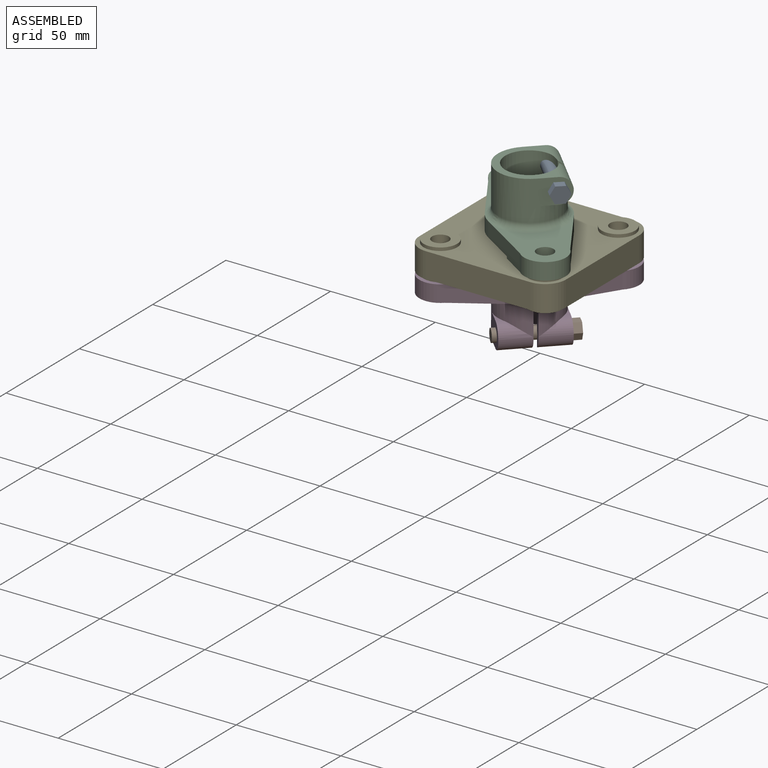
[diagram: assembled view]
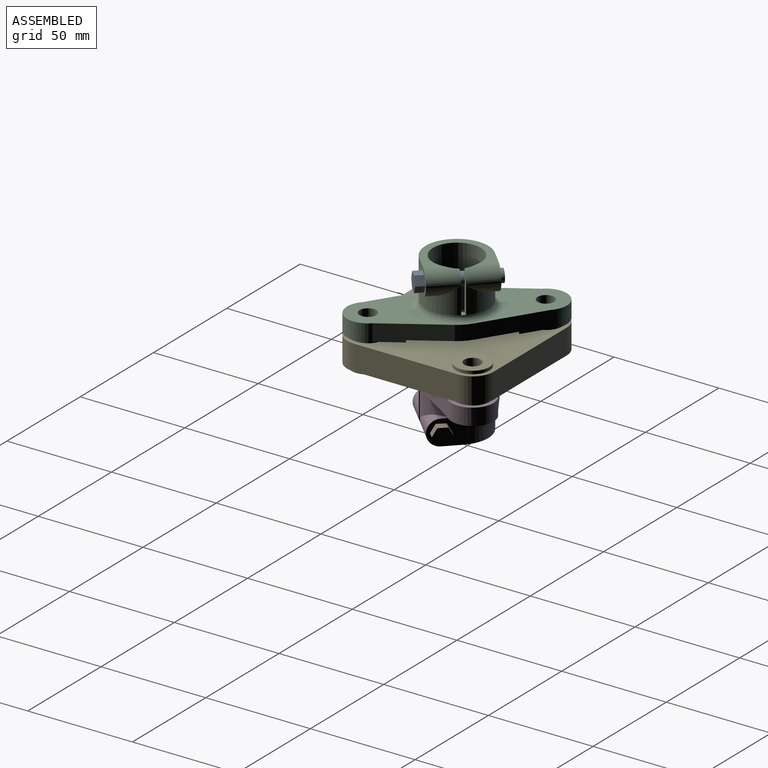
[diagram: assembled view, second angle]
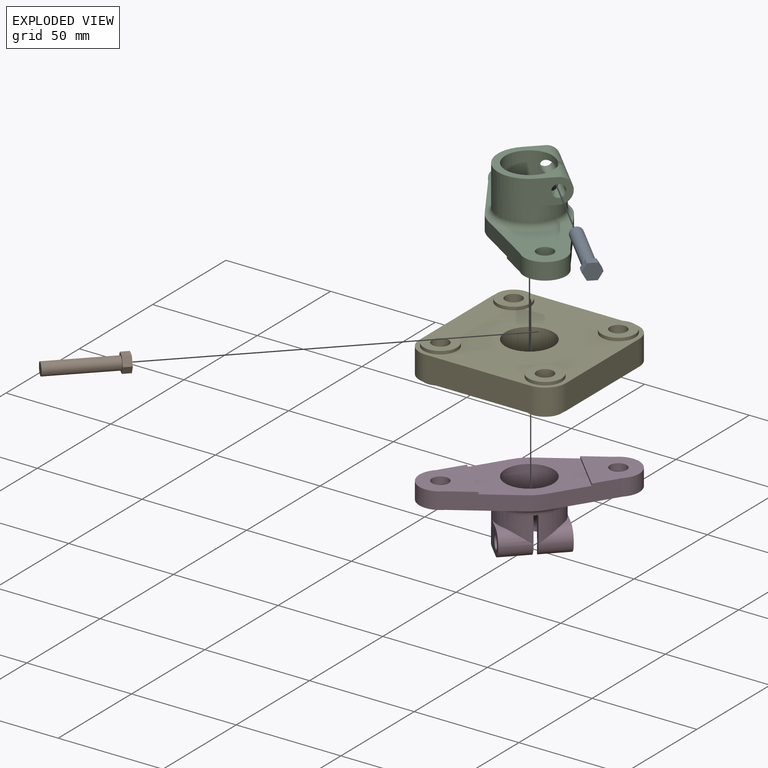
[diagram: exploded view]
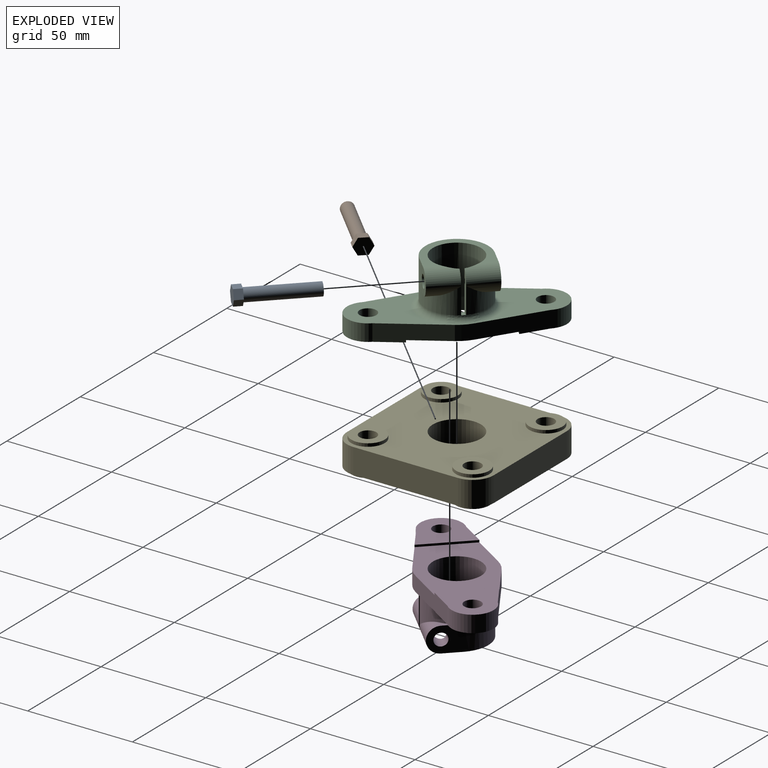
[diagram: exploded view, second angle]
ASSEMBLY  parts=5 mates=4
PART A: 10 faces, bbox 30.7x30.7x7.7 mm
  f0: cylinder r=3mm len=26.87mm, axis (0.71,-0.71,0), area 603.2mm2, adj f1,f9
  f1: plane 6x4.24mm, normal (-0.71,0.71,0), area 28.3mm2, adj f0
  f2: plane 7.68x6.22mm, normal (0.71,-0.71,0), area 50.3mm2, adj f3,f4,f5,f6,f7,f8
  f3: plane 5.94x5.94mm, normal (-0.01,-0.01,-1), area 17.6mm2, adj f2,f4,f8,f9
  f4: plane 4.42x4.42mm, normal (0.61,0.61,-0.51), area 17.6mm2, adj f2,f3,f5,f9
  f5: plane 4.35x4.35mm, normal (0.62,0.62,0.49), area 17.6mm2, adj f2,f4,f6,f9
  f6: plane 5.94x5.94mm, normal (0.01,0.01,1), area 17.6mm2, adj f2,f5,f7,f9
  f7: plane 4.42x4.42mm, normal (-0.61,-0.61,0.51), area 17.6mm2, adj f2,f6,f8,f9
  f8: plane 4.35x4.35mm, normal (-0.62,-0.62,-0.49), area 17.6mm2, adj f2,f3,f7,f9
  f9: plane 7.68x6.22mm, normal (-0.71,0.71,0), area 22mm2, adj f0,f3,f4,f5,f6,f7,f8
PART B: same geometry as A
PART C: 41 faces, bbox 70x70x30 mm
  f0: cylinder r=6mm len=14.14mm, axis (0.71,-0.71,0), area 200.1mm2, adj f3,f4,f6,f24,f35,f37
  f1: cylinder r=6mm len=14.14mm, axis (0.71,-0.71,0), area 200.1mm2, adj f2,f5,f6,f24,f33,f38
  f2: cylinder r=11.5mm len=29mm, axis (0,0,-1), area 1927mm2, adj f1,f3,f23,f24,f33,f35,f36,f39
  f3: cylinder r=11.5mm len=6.09mm, axis (0,0,-1), area 22.7mm2, adj f0,f2,f35,f39
  f4: plane 12x10.61mm, normal (-0.71,0.71,0), area 136.3mm2, adj f0,f6,f24,f37,f39
  f5: plane 12x10.61mm, normal (0.71,-0.71,0), area 136.3mm2, adj f1,f6,f24,f38,f40
  f6: cylinder r=15mm len=30mm, axis (0,0,-1), area 1264.3mm2, adj f0,f1,f4,f5,f24,f25,f26,f27
  f7: plane 40.81x40.81mm, normal (0,0,1), area 591.2mm2, adj f8,f14,f15,f18,f30
  f8: plane 27.34x17.33mm, normal (0.54,0.84,0), area 239.3mm2, adj f7,f13,f14,f20,f22,f23,f28
  f9: plane 27.34x17.33mm, normal (-0.54,-0.84,0), area 239.3mm2, adj f10,f11,f16,f19,f21,f23,f29
  f10: plane 28.2x28.2mm, normal (0,0,-1), area 401mm2, adj f9,f11,f12,f17,f21
  f11: cylinder r=10mm len=17.07mm, axis (0,0,-1), area 251.3mm2, adj f9,f10,f12,f19
  f12: plane 27.33x17.32mm, normal (0.84,0.54,0), area 239.3mm2, adj f10,f11,f13,f19,f21,f23,f25
  f13: cylinder r=17.5mm len=7mm, axis (0,0,-1), area 54.1mm2, adj f8,f12,f23,f26
  f14: cylinder r=10mm len=17.07mm, axis (0,0,-1), area 251.3mm2, adj f7,f8,f15,f20
  f15: plane 27.33x17.32mm, normal (-0.84,-0.54,0), area 239.3mm2, adj f7,f14,f16,f20,f22,f23,f32
  f16: cylinder r=17.5mm len=7mm, axis (0,0,-1), area 54.1mm2, adj f9,f15,f23,f31
  f17: cylinder r=4mm len=8mm, axis (0,0,-1), area 201.1mm2, adj f10,f19
  f18: cylinder r=4mm len=8mm, axis (0,0,-1), area 201.1mm2, adj f7,f20
  f19: plane 40.81x40.81mm, normal (0,0,1), area 591.2mm2, adj f9,f11,f12,f17,f27
  f20: plane 28.2x28.2mm, normal (0,0,-1), area 401mm2, adj f8,f14,f15,f18,f22
  f21: plane 18.22x18.22mm, normal (-0.71,0.71,0), area 25.8mm2, adj f9,f10,f12,f23
  f22: plane 18.22x18.22mm, normal (0.71,-0.71,0), area 25.8mm2, adj f8,f15,f20,f23
  f23: plane 50.04x50.04mm, normal (0,0,-1), area 969.2mm2, adj f2,f8,f9,f12,f13,f15,f16,f21
  f24: plane 31.97x31.97mm, normal (0,0,1), area 232.4mm2, adj f0,f1,f2,f4,f5,f6
  f25: bspline ~5.85x5.19mm, area 16.5mm2, adj f6,f12,f26,f27
  f26: torus R=18mm, axis (0,0,-1), area 29.5mm2, adj f6,f13,f25,f28,f34
  f27: torus R=18mm, axis (0,0,1), area 168.9mm2, adj f6,f19,f25,f29
  f28: bspline ~6.75x5.71mm, area 16.5mm2, adj f6,f8,f26,f30
  f29: bspline ~6.75x5.71mm, area 16.5mm2, adj f6,f9,f27,f31
  f30: torus R=18mm, axis (0,0,1), area 168.9mm2, adj f6,f7,f28,f32
  f31: torus R=18mm, axis (0,0,-1), area 29.5mm2, adj f6,f16,f29,f32
  f32: bspline ~5.85x5.19mm, area 16.5mm2, adj f6,f15,f30,f31
  f33: plane 18.87x2.51mm, normal (-0.71,0.71,0), area 59.7mm2, adj f1,f2,f6,f34,f36,f40
  f34: cylinder r=15mm len=1.41mm, axis (0,0,1), area 0.7mm2, adj f26,f33,f35,f36
  f35: plane 18.87x2.51mm, normal (0.71,-0.71,0), area 59.7mm2, adj f0,f2,f3,f6,f34,f36,f39
  f36: plane 3.9x3.9mm, normal (0,0,1), area 7mm2, adj f2,f33,f34,f35
  f37: plane 8.49x6.36mm, normal (0,0,-1), area 8.6mm2, adj f0,f4,f6
  f38: plane 8.49x6.36mm, normal (0,0,-1), area 8.6mm2, adj f1,f5,f6
  f39: cylinder r=3mm len=14.14mm, axis (0.71,-0.71,0), area 171mm2, adj f2,f3,f4,f35
  f40: cylinder r=3mm len=14.14mm, axis (0.71,-0.71,0), area 167.4mm2, adj f2,f5,f33
PART D: same geometry as C
PART E: 31 faces, bbox 70x70x15 mm
  f0: plane 50x12mm, normal (1,0,0), area 600mm2, adj f1,f12,f13,f14
  f1: cylinder r=10mm len=12mm, axis (0,0,-1), area 188.5mm2, adj f0,f2,f13,f14
  f2: plane 50x12mm, normal (0,1,0), area 600mm2, adj f1,f3,f13,f14
  f3: cylinder r=10mm len=12mm, axis (0,0,-1), area 188.5mm2, adj f2,f4,f13,f14
  f4: plane 50x12mm, normal (-1,0,0), area 600mm2, adj f3,f5,f13,f14
  f5: cylinder r=10mm len=12mm, axis (0,0,-1), area 188.5mm2, adj f4,f6,f13,f14
  f6: plane 50x12mm, normal (0,-1,0), area 600mm2, adj f5,f12,f13,f14
  f7: cylinder r=4mm len=15mm, axis (0,0,-1), area 377mm2, adj f18,f26
  f8: cylinder r=4mm len=15mm, axis (0,0,-1), area 377mm2, adj f20,f28
  f9: cylinder r=4mm len=15mm, axis (0,0,-1), area 377mm2, adj f16,f24
  f10: cylinder r=4mm len=15mm, axis (0,0,-1), area 377mm2, adj f22,f30
  f11: cylinder r=11.5mm len=23mm, axis (0,0,-1), area 867.1mm2, adj f13,f14
  f12: cylinder r=10mm len=12mm, axis (0,0,-1), area 188.5mm2, adj f0,f6,f13,f14
  f13: plane 70x70mm, normal (0,0,1), area 3594.4mm2, adj f0,f1,f2,f3,f4,f5,f6,f11
  f14: plane 70x70mm, normal (0,0,-1), area 3594.4mm2, adj f0,f1,f2,f3,f4,f5,f6,f11
  f15: cylinder r=8mm len=16mm, axis (0,0,-1), area 75.4mm2, adj f13,f16
  f16: plane 16x16mm, normal (0,0,1), area 150.8mm2, adj f9,f15
  f17: cylinder r=8mm len=16mm, axis (0,0,-1), area 75.4mm2, adj f13,f18
  f18: plane 16x16mm, normal (0,0,1), area 150.8mm2, adj f7,f17
  f19: cylinder r=8mm len=16mm, axis (0,0,-1), area 75.4mm2, adj f13,f20
  f20: plane 16x16mm, normal (0,0,1), area 150.8mm2, adj f8,f19
  f21: cylinder r=8mm len=16mm, axis (0,0,-1), area 75.4mm2, adj f13,f22
  f22: plane 16x16mm, normal (0,0,1), area 150.8mm2, adj f10,f21
  f23: cylinder r=8mm len=16mm, axis (0,0,1), area 75.4mm2, adj f14,f24
  f24: plane 16x16mm, normal (0,0,-1), area 150.8mm2, adj f9,f23
  f25: cylinder r=8mm len=16mm, axis (0,0,1), area 75.4mm2, adj f14,f26
  f26: plane 16x16mm, normal (0,0,-1), area 150.8mm2, adj f7,f25
  f27: cylinder r=8mm len=16mm, axis (0,0,1), area 75.4mm2, adj f14,f28
  f28: plane 16x16mm, normal (0,0,-1), area 150.8mm2, adj f8,f27
  f29: cylinder r=8mm len=16mm, axis (0,0,1), area 75.4mm2, adj f14,f30
  f30: plane 16x16mm, normal (0,0,-1), area 150.8mm2, adj f10,f29
PLACE A t=(0,0,1.5)mm
PLACE B rot(axis=(0,0,1),90deg) t=(12.73,-12.73,-61.5)mm
PLACE C t=(0,0,1.5)mm
PLACE D rot(axis=(1,0,0),180deg) t=(0,0,-1.5)mm
PLACE E at identity fixed
MATE fastened D.f11 <-> E.f1  axis (0,0,1) through (25,25,-7.5)mm
MATE fastened B.f0 <-> D.f39  axis (0.71,0.71,0) through (16.97,4.24,-31.5)mm
MATE fastened A.f0 <-> C.f39  axis (0.71,-0.71,0) through (16.97,-4.24,31.5)mm
MATE fastened C.f11 <-> E.f7  axis (0,0,-1) through (25,-25,7.5)mm
